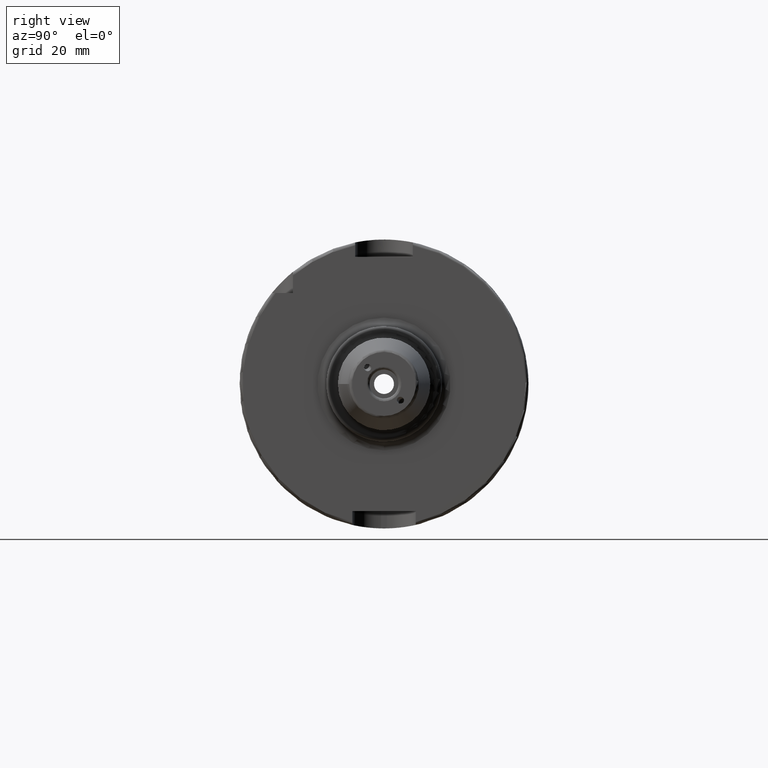
[diagram: clean part render]
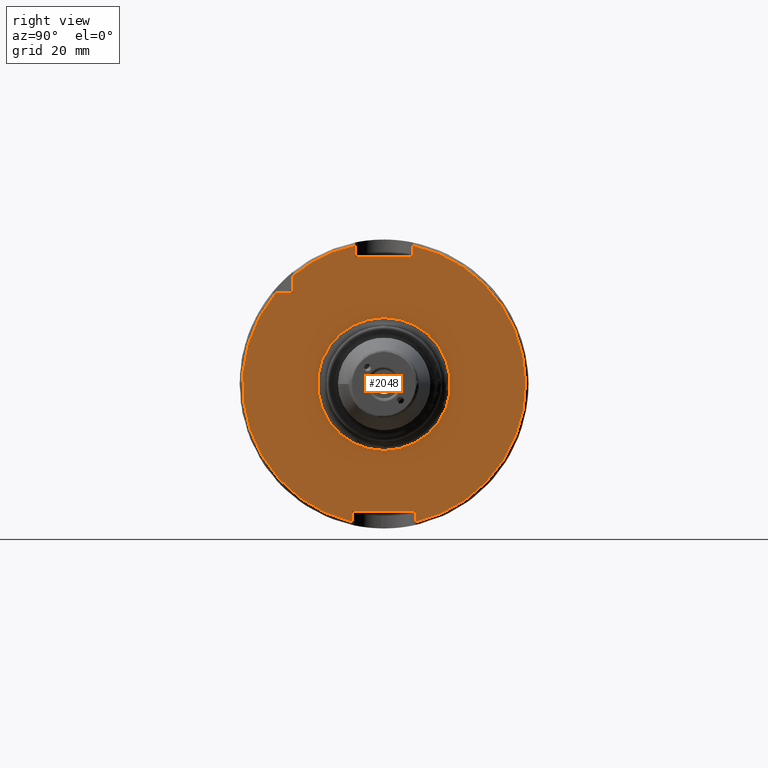
[diagram: same view with one face highlighted and labeled with its STEP entity id]
A machine part, right view. The second image highlights one B-rep face of the part: STEP entity #2048.
In plain terms, the highlighted planar face has unit normal (1, 0, 0).
Its self-contained STEP definition (entity closure, byte-faithful):
#88=FACE_BOUND('',#353,.T.);
#99=PLANE('',#2219);
#226=FACE_OUTER_BOUND('',#352,.T.);
#352=EDGE_LOOP('',(#1429,#1430,#1431,#1432,#1433,#1434,#1435,#1436,#1437,
#1438,#1439));
#353=EDGE_LOOP('',(#1440));
#479=LINE('',#3176,#587);
#480=LINE('',#3180,#588);
#481=LINE('',#3182,#589);
#482=LINE('',#3184,#590);
#483=LINE('',#3188,#591);
#484=LINE('',#3190,#592);
#485=LINE('',#3192,#593);
#486=LINE('',#3195,#594);
#587=VECTOR('',#2541,10.);
#588=VECTOR('',#2544,10.);
#589=VECTOR('',#2545,10.);
#590=VECTOR('',#2546,10.);
#591=VECTOR('',#2549,10.);
#592=VECTOR('',#2550,10.);
#593=VECTOR('',#2551,10.);
#594=VECTOR('',#2554,10.);
#709=CIRCLE('',#2218,23.);
#710=CIRCLE('',#2220,49.);
#711=CIRCLE('',#2221,49.);
#712=CIRCLE('',#2222,49.);
#848=VERTEX_POINT('',#3170);
#849=VERTEX_POINT('',#3174);
#850=VERTEX_POINT('',#3175);
#851=VERTEX_POINT('',#3177);
#852=VERTEX_POINT('',#3179);
#853=VERTEX_POINT('',#3181);
#854=VERTEX_POINT('',#3183);
#855=VERTEX_POINT('',#3185);
#856=VERTEX_POINT('',#3187);
#857=VERTEX_POINT('',#3189);
#858=VERTEX_POINT('',#3191);
#859=VERTEX_POINT('',#3193);
#1071=EDGE_CURVE('',#848,#848,#709,.T.);
#1072=EDGE_CURVE('',#849,#850,#479,.T.);
#1073=EDGE_CURVE('',#850,#851,#710,.T.);
#1074=EDGE_CURVE('',#851,#852,#480,.T.);
#1075=EDGE_CURVE('',#852,#853,#481,.T.);
#1076=EDGE_CURVE('',#853,#854,#482,.T.);
#1077=EDGE_CURVE('',#854,#855,#711,.T.);
#1078=EDGE_CURVE('',#855,#856,#483,.T.);
#1079=EDGE_CURVE('',#856,#857,#484,.T.);
#1080=EDGE_CURVE('',#857,#858,#485,.T.);
#1081=EDGE_CURVE('',#858,#859,#712,.T.);
#1082=EDGE_CURVE('',#859,#849,#486,.T.);
#1429=ORIENTED_EDGE('',*,*,#1072,.T.);
#1430=ORIENTED_EDGE('',*,*,#1073,.T.);
#1431=ORIENTED_EDGE('',*,*,#1074,.T.);
#1432=ORIENTED_EDGE('',*,*,#1075,.T.);
#1433=ORIENTED_EDGE('',*,*,#1076,.T.);
#1434=ORIENTED_EDGE('',*,*,#1077,.T.);
#1435=ORIENTED_EDGE('',*,*,#1078,.T.);
#1436=ORIENTED_EDGE('',*,*,#1079,.T.);
#1437=ORIENTED_EDGE('',*,*,#1080,.T.);
#1438=ORIENTED_EDGE('',*,*,#1081,.T.);
#1439=ORIENTED_EDGE('',*,*,#1082,.T.);
#1440=ORIENTED_EDGE('',*,*,#1071,.F.);
#2048=ADVANCED_FACE('',(#226,#88),#99,.T.);
#2218=AXIS2_PLACEMENT_3D('',#3172,#2537,#2538);
#2219=AXIS2_PLACEMENT_3D('',#3173,#2539,#2540);
#2220=AXIS2_PLACEMENT_3D('',#3178,#2542,#2543);
#2221=AXIS2_PLACEMENT_3D('',#3186,#2547,#2548);
#2222=AXIS2_PLACEMENT_3D('',#3194,#2552,#2553);
#2537=DIRECTION('center_axis',(1.,0.,0.));
#2538=DIRECTION('ref_axis',(0.,-1.,-1.22464679914735E-16));
#2539=DIRECTION('center_axis',(1.,0.,0.));
#2540=DIRECTION('ref_axis',(0.,0.,-1.));
#2541=DIRECTION('',(0.,-1.,0.));
#2542=DIRECTION('center_axis',(1.,0.,0.));
#2543=DIRECTION('ref_axis',(0.,0.,-1.));
#2544=DIRECTION('',(0.,0.,1.));
#2545=DIRECTION('',(0.,1.,0.));
#2546=DIRECTION('',(0.,0.,-1.));
#2547=DIRECTION('center_axis',(1.,0.,0.));
#2548=DIRECTION('ref_axis',(0.,0.,-1.));
#2549=DIRECTION('',(0.,0.,-1.));
#2550=DIRECTION('',(0.,-1.,0.));
#2551=DIRECTION('',(0.,0.,1.));
#2552=DIRECTION('center_axis',(1.,0.,0.));
#2553=DIRECTION('ref_axis',(0.,0.,-1.));
#2554=DIRECTION('',(0.,0.,-1.));
#3170=CARTESIAN_POINT('',(29.,-2.81668763803891E-15,-23.));
#3172=CARTESIAN_POINT('Origin',(29.,0.,0.));
#3173=CARTESIAN_POINT('Origin',(29.,0.,0.));
#3174=CARTESIAN_POINT('',(29.,-31.5,31.5));
#3175=CARTESIAN_POINT('',(29.,-37.5333185316726,31.5));
#3176=CARTESIAN_POINT('',(29.,-18.25,31.5));
#3177=CARTESIAN_POINT('',(29.,-11.,-47.7493455452533));
#3178=CARTESIAN_POINT('Origin',(29.,0.,0.));
#3179=CARTESIAN_POINT('',(29.,-11.,-44.));
#3180=CARTESIAN_POINT('',(29.,-11.,-22.));
#3181=CARTESIAN_POINT('',(29.,11.,-44.));
#3182=CARTESIAN_POINT('',(29.,-5.55111512312578E-16,-44.));
#3183=CARTESIAN_POINT('',(29.,11.,-47.7493455452533));
#3184=CARTESIAN_POINT('',(29.,11.,-22.));
#3185=CARTESIAN_POINT('',(29.,10.,47.9687398208458));
#3186=CARTESIAN_POINT('Origin',(29.,0.,0.));
#3187=CARTESIAN_POINT('',(29.,10.,44.));
#3188=CARTESIAN_POINT('',(29.,10.,22.));
#3189=CARTESIAN_POINT('',(29.,-10.,44.));
#3190=CARTESIAN_POINT('',(29.,0.,44.));
#3191=CARTESIAN_POINT('',(29.,-10.,47.9687398208458));
#3192=CARTESIAN_POINT('',(29.,-10.,22.));
#3193=CARTESIAN_POINT('',(29.,-31.5,37.5333185316726));
#3194=CARTESIAN_POINT('Origin',(29.,0.,0.));
#3195=CARTESIAN_POINT('',(29.,-31.5,15.75));